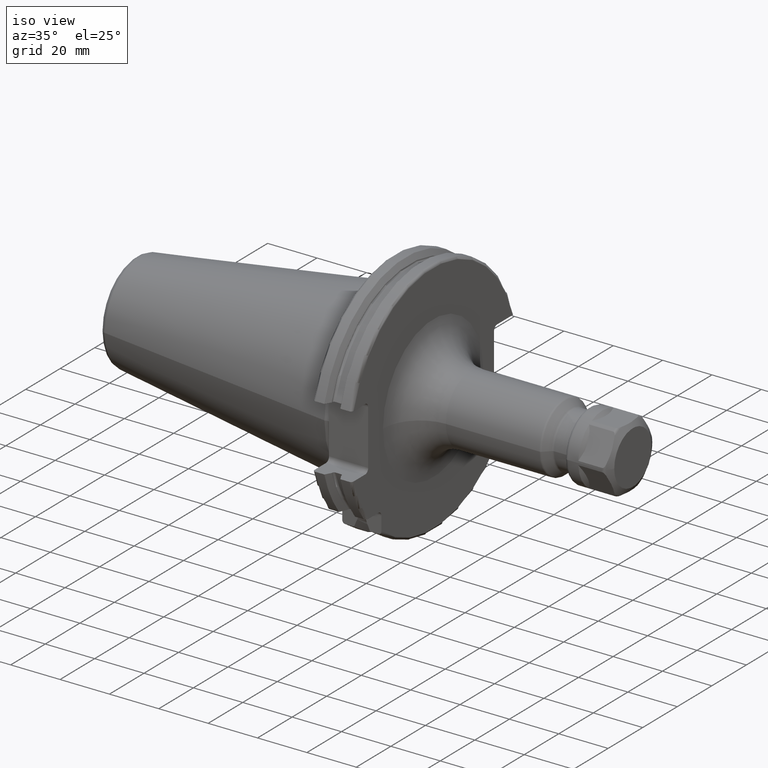
[diagram: clean part render]
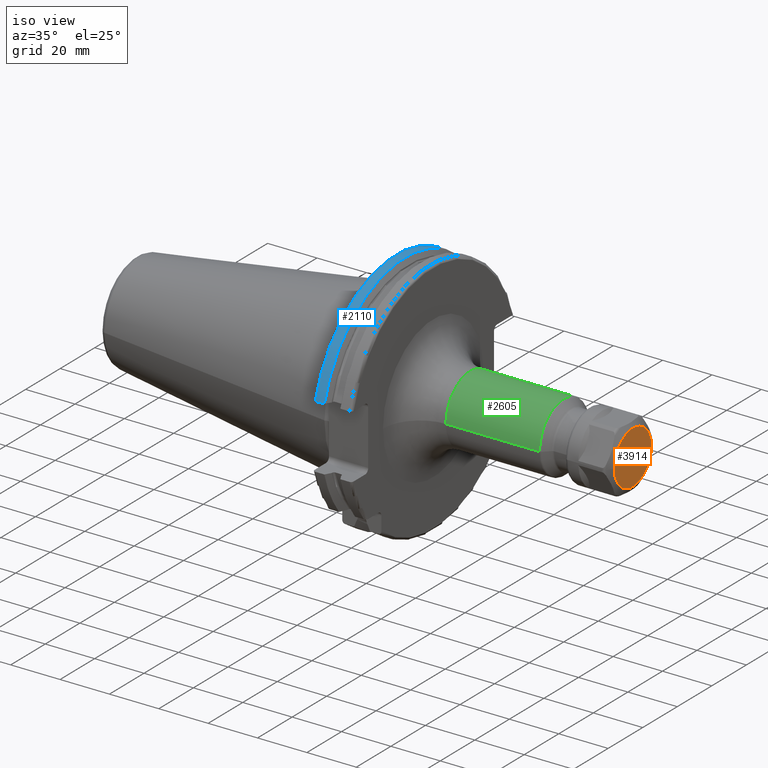
[diagram: same view with three faces highlighted in distinct colors, each labeled with its STEP entity id]
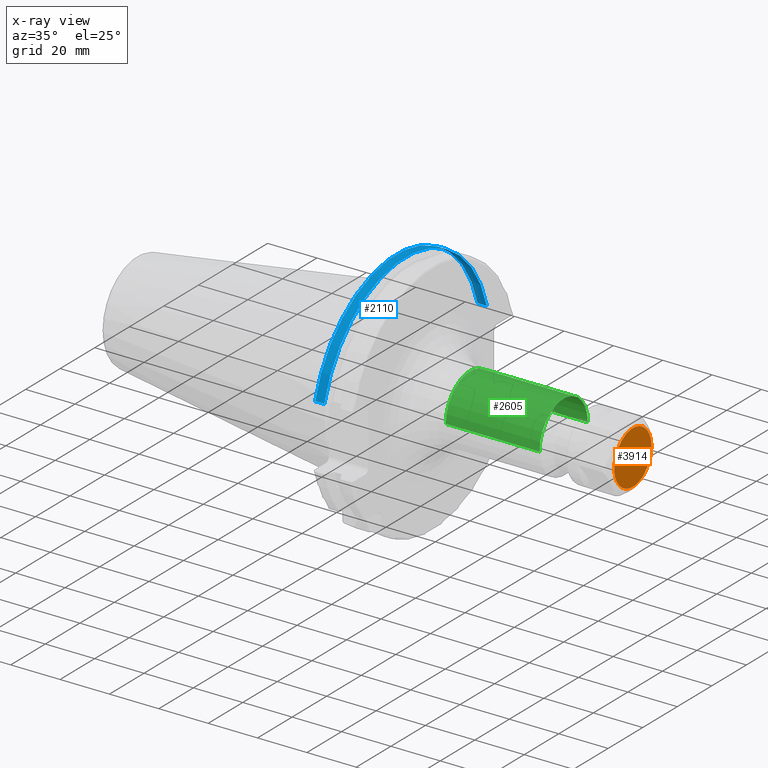
[diagram: x-ray of the same camera — body ghosted, the three highlighted faces saturated]
A machine part, iso view with three faces highlighted in distinct colors.
The next image is the same camera in x-ray (body ghosted, the three faces saturated) — at least one of them is partly hidden behind the body in this view.
Their STEP definitions:

[orange] entity #3914 — the highlighted planar face has unit normal (1, 0, 0).
#3297=CARTESIAN_POINT('',(1.78E1,0.E0,0.E0));
#3298=DIRECTION('',(-1.E0,0.E0,0.E0));
#3299=DIRECTION('',(0.E0,1.E0,0.E0));
#3300=AXIS2_PLACEMENT_3D('',#3297,#3298,#3299);
#3663=CARTESIAN_POINT('',(1.78E1,0.E0,0.E0));
#3664=DIRECTION('',(1.E0,0.E0,0.E0));
#3665=DIRECTION('',(0.E0,1.E0,0.E0));
#3666=AXIS2_PLACEMENT_3D('',#3663,#3664,#3665);
#3830=CARTESIAN_POINT('',(1.78E1,1.075E1,0.E0));
#3831=CARTESIAN_POINT('',(1.78E1,-1.075E1,0.E0));
#3832=VERTEX_POINT('',#3830);
#3833=VERTEX_POINT('',#3831);
#3903=CARTESIAN_POINT('',(1.78E1,0.E0,0.E0));
#3904=DIRECTION('',(1.E0,0.E0,0.E0));
#3905=DIRECTION('',(0.E0,-1.E0,0.E0));
#3906=AXIS2_PLACEMENT_3D('',#3903,#3904,#3905);
#3907=PLANE('',#3906);
#3909=ORIENTED_EDGE('',*,*,#3908,.T.);
#3911=ORIENTED_EDGE('',*,*,#3910,.F.);
#3912=EDGE_LOOP('',(#3909,#3911));
#3913=FACE_OUTER_BOUND('',#3912,.F.);
#3914=ADVANCED_FACE('',(#3913),#3907,.T.);
#3301=CIRCLE('',#3300,1.075E1);
#3667=CIRCLE('',#3666,1.075E1);
#3908=EDGE_CURVE('',#3832,#3833,#3301,.T.);
#3910=EDGE_CURVE('',#3832,#3833,#3667,.T.);

[blue] entity #2110 — the highlighted cylindrical surface (partial cylindrical patch) has radius 48.7375 mm, axis along (1, 0, 0).
#347=CARTESIAN_POINT('',(4.2E0,0.E0,0.E0));
#348=DIRECTION('',(1.E0,0.E0,0.E0));
#349=DIRECTION('',(0.E0,9.643354064066E-1,2.646832521159E-1));
#350=AXIS2_PLACEMENT_3D('',#347,#348,#349);
#394=DIRECTION('',(1.E0,0.E0,0.E0));
#395=VECTOR('',#394,3.734621614173E0);
#396=CARTESIAN_POINT('',(4.2E0,4.699929686974E1,1.29E1));
#397=LINE('',#396,#395);
#398=CARTESIAN_POINT('',(7.934621614173E0,0.E0,0.E0));
#399=DIRECTION('',(1.E0,0.E0,0.E0));
#400=DIRECTION('',(0.E0,9.643354064066E-1,2.646832521159E-1));
#401=AXIS2_PLACEMENT_3D('',#398,#399,#400);
#403=DIRECTION('',(1.E0,0.E0,0.E0));
#404=VECTOR('',#403,3.734621614173E0);
#405=CARTESIAN_POINT('',(4.2E0,-4.699929686974E1,1.29E1));
#406=LINE('',#405,#404);
#425=CARTESIAN_POINT('',(7.934621614173E0,4.699929686974E1,1.29E1));
#437=CARTESIAN_POINT('',(7.934621614173E0,-4.699929686974E1,1.29E1));
#1428=VERTEX_POINT('',#425);
#1429=VERTEX_POINT('',#437);
#1440=CARTESIAN_POINT('',(4.2E0,4.699929686974E1,1.29E1));
#1441=VERTEX_POINT('',#1440);
#1444=CARTESIAN_POINT('',(4.2E0,-4.699929686974E1,1.29E1));
#1445=VERTEX_POINT('',#1444);
#2098=CARTESIAN_POINT('',(-1.076325E2,0.E0,0.E0));
#2099=DIRECTION('',(1.E0,0.E0,0.E0));
#2100=DIRECTION('',(0.E0,-1.E0,0.E0));
#2101=AXIS2_PLACEMENT_3D('',#2098,#2099,#2100);
#2102=CYLINDRICAL_SURFACE('',#2101,4.87375E1);
#2103=ORIENTED_EDGE('',*,*,#2078,.T.);
#2105=ORIENTED_EDGE('',*,*,#2104,.T.);
#2106=ORIENTED_EDGE('',*,*,#2003,.F.);
#2107=ORIENTED_EDGE('',*,*,#2046,.F.);
#2108=EDGE_LOOP('',(#2103,#2105,#2106,#2107));
#2109=FACE_OUTER_BOUND('',#2108,.F.);
#2110=ADVANCED_FACE('',(#2109),#2102,.T.);
#351=CIRCLE('',#350,4.87375E1);
#402=CIRCLE('',#401,4.87375E1);
#2003=EDGE_CURVE('',#1445,#1429,#406,.T.);
#2046=EDGE_CURVE('',#1441,#1445,#351,.T.);
#2078=EDGE_CURVE('',#1441,#1428,#397,.T.);
#2104=EDGE_CURVE('',#1428,#1429,#402,.T.);

[green] entity #2605 — the highlighted cylindrical surface (partial cylindrical patch) has radius 14 mm, axis along (1, 0, 0).
#962=CARTESIAN_POINT('',(7.198578643763E1,0.E0,0.E0));
#963=DIRECTION('',(-1.E0,0.E0,0.E0));
#964=DIRECTION('',(0.E0,-1.E0,0.E0));
#965=AXIS2_PLACEMENT_3D('',#962,#963,#964);
#967=CARTESIAN_POINT('',(3.405E1,0.E0,0.E0));
#968=DIRECTION('',(1.E0,0.E0,0.E0));
#969=DIRECTION('',(0.E0,1.E0,0.E0));
#970=AXIS2_PLACEMENT_3D('',#967,#968,#969);
#987=DIRECTION('',(-1.E0,0.E0,1.345367573344E-13));
#988=VECTOR('',#987,3.793578643763E1);
#989=CARTESIAN_POINT('',(7.198578643763E1,1.4E1,-2.273441552079E-12));
#990=LINE('',#989,#988);
#996=DIRECTION('',(-1.E0,0.E0,-1.344966386845E-13));
#997=VECTOR('',#996,3.793578643763E1);
#998=CARTESIAN_POINT('',(7.198578643763E1,-1.4E1,2.273017549823E-12));
#999=LINE('',#998,#997);
#1551=CARTESIAN_POINT('',(3.405E1,-1.4E1,0.E0));
#1552=CARTESIAN_POINT('',(3.405E1,1.4E1,0.E0));
#1553=VERTEX_POINT('',#1551);
#1554=VERTEX_POINT('',#1552);
#1563=CARTESIAN_POINT('',(7.198578643763E1,1.4E1,0.E0));
#1564=CARTESIAN_POINT('',(7.198578643763E1,-1.4E1,0.E0));
#1565=VERTEX_POINT('',#1563);
#1566=VERTEX_POINT('',#1564);
#2591=CARTESIAN_POINT('',(1.55325E1,0.E0,0.E0));
#2592=DIRECTION('',(1.E0,0.E0,0.E0));
#2593=DIRECTION('',(0.E0,-1.E0,0.E0));
#2594=AXIS2_PLACEMENT_3D('',#2591,#2592,#2593);
#2595=CYLINDRICAL_SURFACE('',#2594,1.4E1);
#2597=ORIENTED_EDGE('',*,*,#2596,.F.);
#2599=ORIENTED_EDGE('',*,*,#2598,.T.);
#2600=ORIENTED_EDGE('',*,*,#2585,.F.);
#2602=ORIENTED_EDGE('',*,*,#2601,.F.);
#2603=EDGE_LOOP('',(#2597,#2599,#2600,#2602));
#2604=FACE_OUTER_BOUND('',#2603,.F.);
#2605=ADVANCED_FACE('',(#2604),#2595,.T.);
#966=CIRCLE('',#965,1.4E1);
#971=CIRCLE('',#970,1.4E1);
#2585=EDGE_CURVE('',#1554,#1553,#971,.T.);
#2596=EDGE_CURVE('',#1566,#1565,#966,.T.);
#2598=EDGE_CURVE('',#1566,#1553,#999,.T.);
#2601=EDGE_CURVE('',#1565,#1554,#990,.T.);